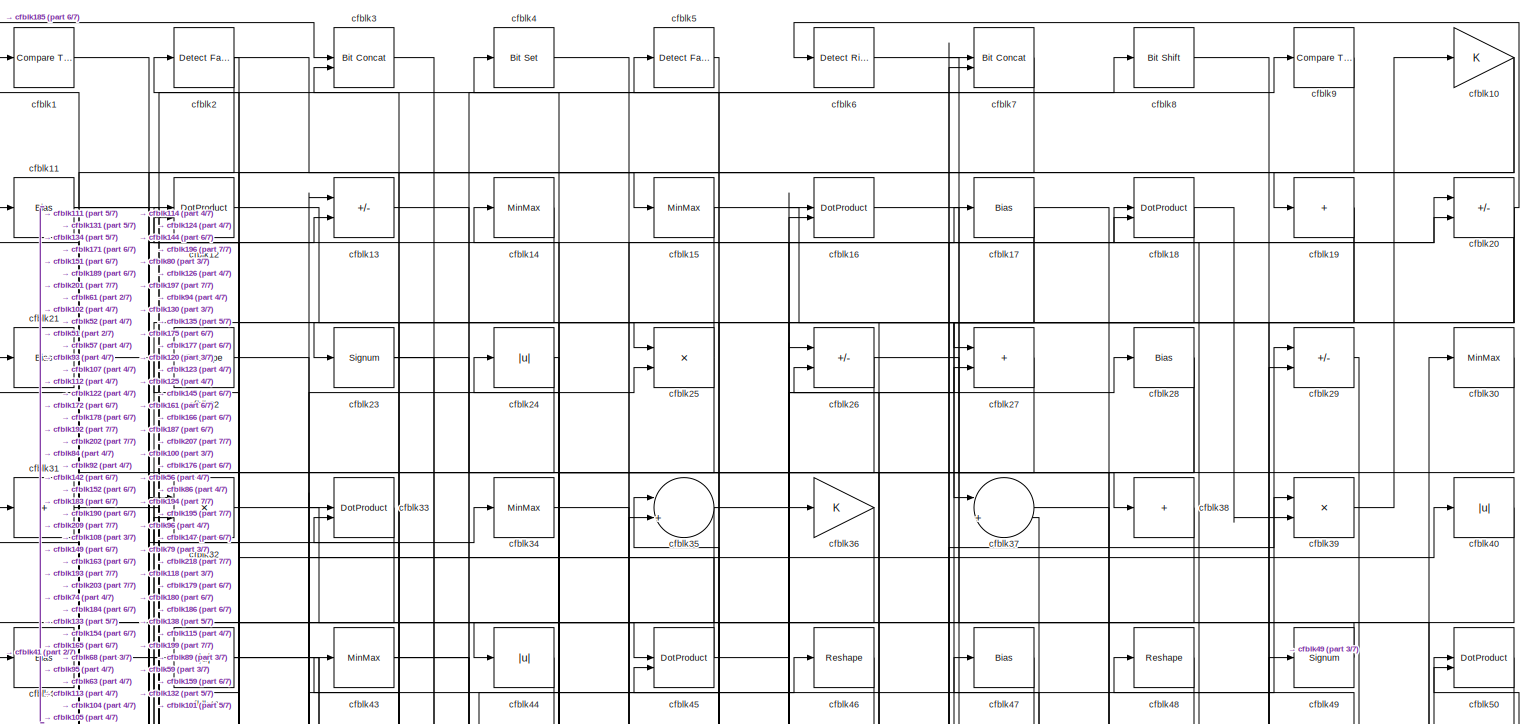
[diagram: root canvas - part 1/7, full width, top band]
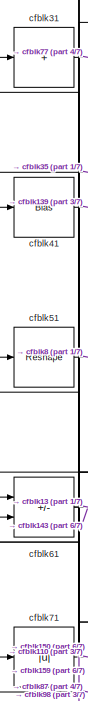
[diagram: root canvas - part 2/7, top left region]
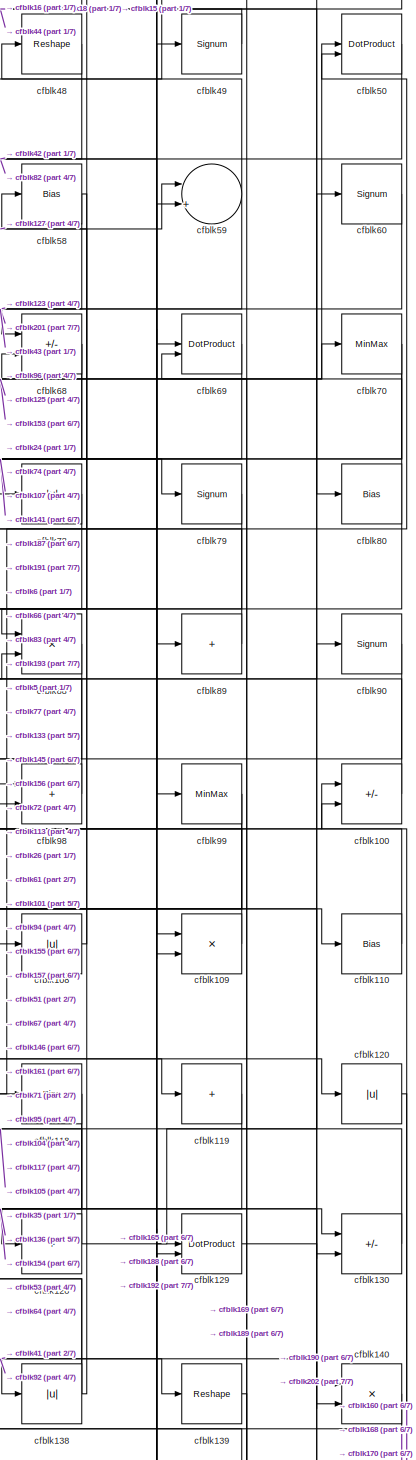
[diagram: root canvas - part 3/7, middle right region]
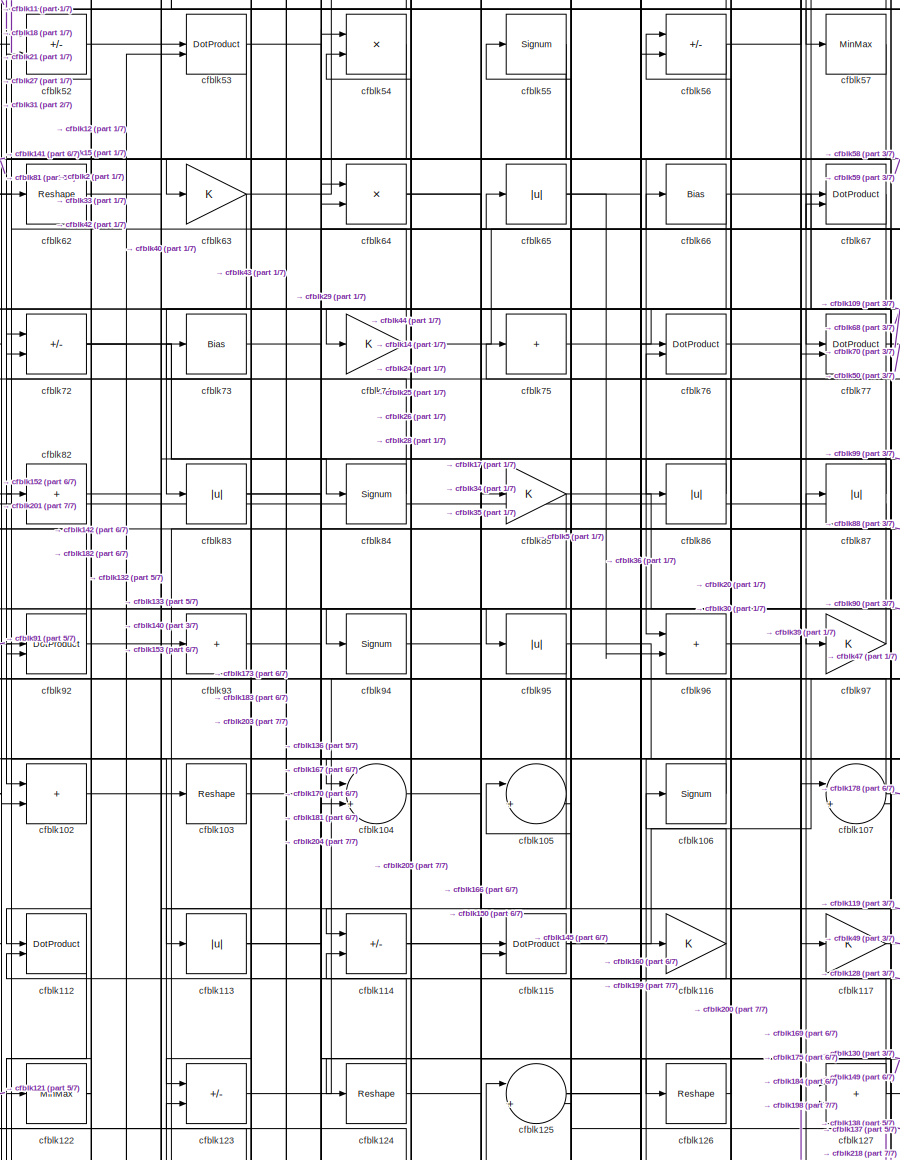
[diagram: root canvas - part 4/7, central region]
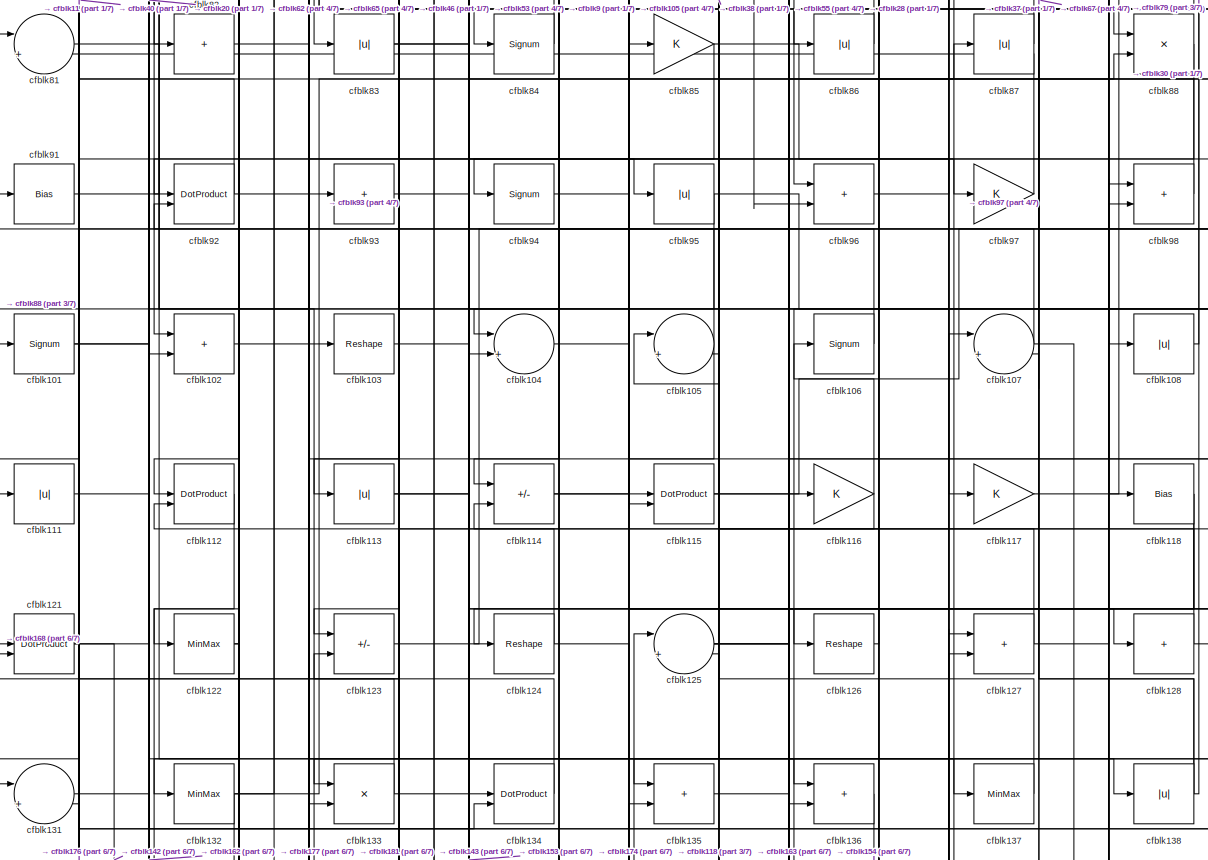
[diagram: root canvas - part 5/7, full width, middle band]
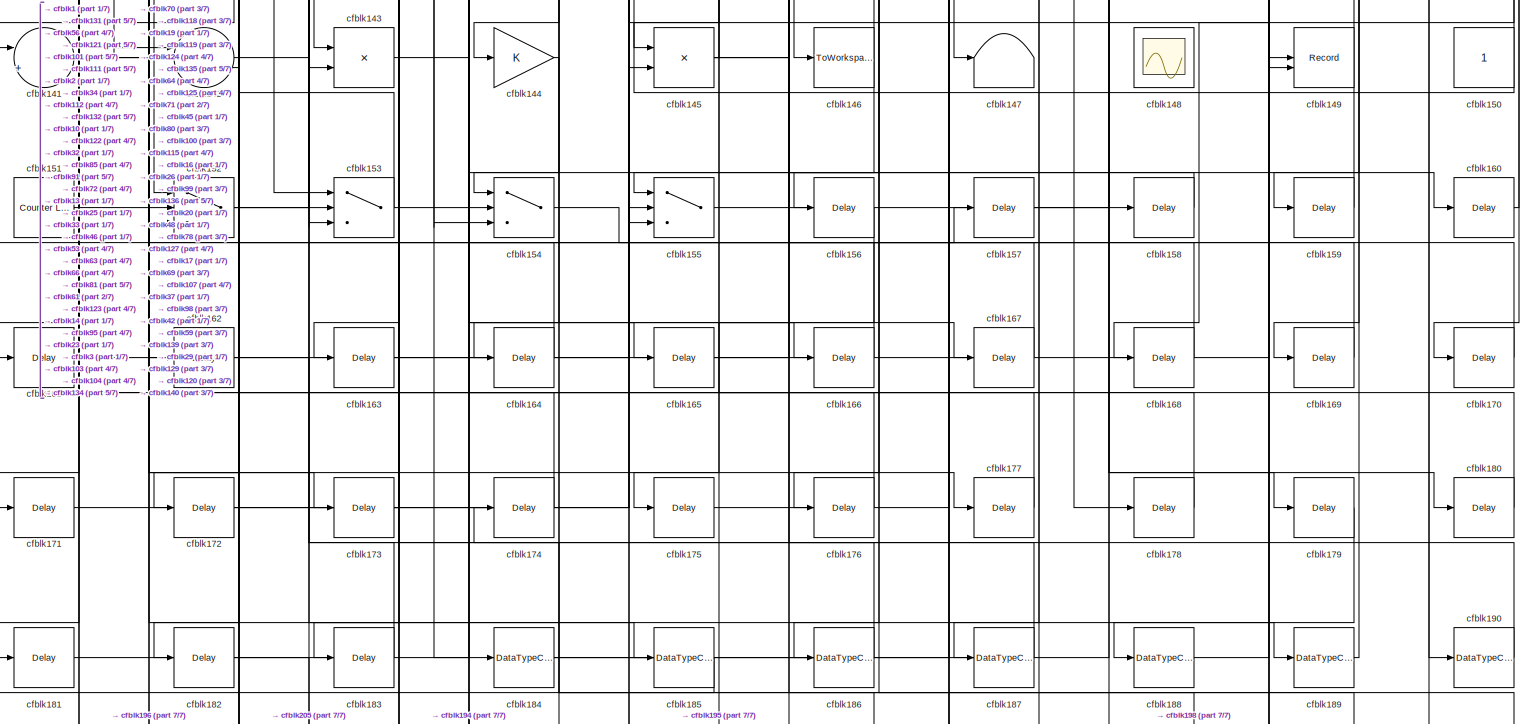
[diagram: root canvas - part 6/7, full width, bottom band]
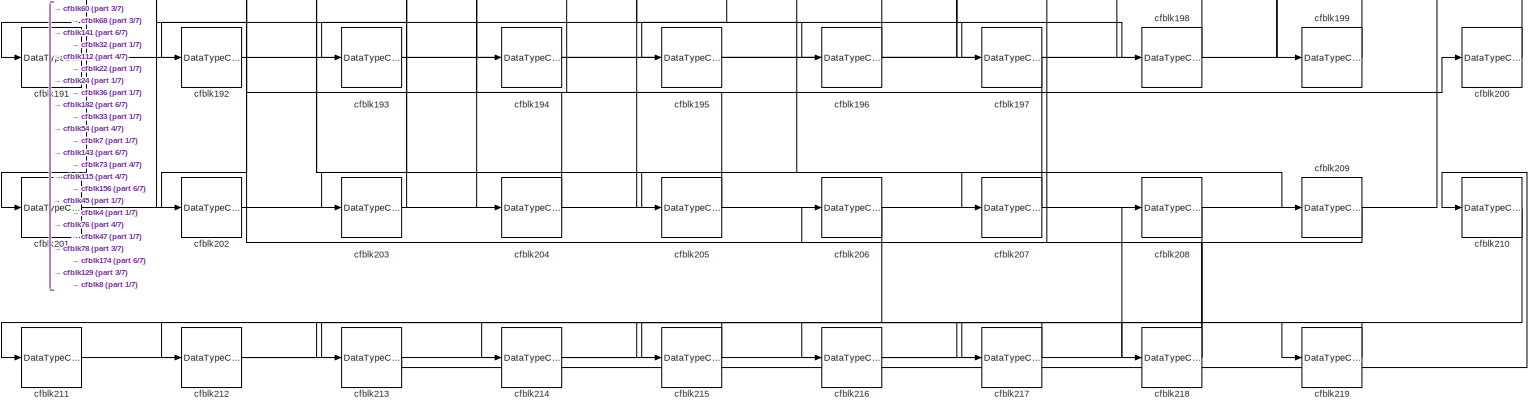
[diagram: root canvas - part 7/7, full width, bottom band]
MODEL slx_0b3b42b38021
KIND model
CONFIG AbsTol = auto
CONFIG EnableMultiTasking = off
CONFIG FixedStep = auto
CONFIG MaxStep = auto
CONFIG MinStep = auto
CONFIG RelTol = 1e-3
CONFIG SampleTimeConstraint = Unconstrained
CONFIG SolverName = VariableStepAuto
CONFIG StartTime = 0.0
CONFIG StopTime = 10.0
BLOCK [Reference] cfblk1  REF=hdlsllib/Logic and Bit
Operations/Compare
To Constant
  SourceBlock = hdlsllib/Logic and Bit\nOperations/Compare\nTo Constant
  SourceType = Compare To Constant
BLOCK [Gain] cfblk10
BLOCK [Sum] cfblk100
  IconShape = rectangular
  Inputs = +-
BLOCK [Signum] cfblk101
BLOCK [Sum] cfblk102
  IconShape = rectangular
BLOCK [Reshape] cfblk103
BLOCK [Sum] cfblk104
  Inputs = |++
BLOCK [Sum] cfblk105
  Inputs = |++
BLOCK [Signum] cfblk106
BLOCK [Sum] cfblk107
  Inputs = |++
BLOCK [Abs] cfblk108
  SaturateOnIntegerOverflow = off
BLOCK [Product] cfblk109
  Inputs = */
  RndMeth = Zero
  SaturateOnIntegerOverflow = on
BLOCK [Bias] cfblk11
  Bias = 0.0
  SaturateOnIntegerOverflow = off
BLOCK [Bias] cfblk110
  Bias = 0.0
  SaturateOnIntegerOverflow = off
BLOCK [Abs] cfblk111
  SaturateOnIntegerOverflow = off
BLOCK [DotProduct] cfblk112
  OutDataTypeStr = Inherit: Inherit via internal rule
BLOCK [Abs] cfblk113
  SaturateOnIntegerOverflow = off
BLOCK [Sum] cfblk114
  IconShape = rectangular
  Inputs = +-
BLOCK [DotProduct] cfblk115
  OutDataTypeStr = Inherit: Inherit via internal rule
BLOCK [Gain] cfblk116
BLOCK [Gain] cfblk117
BLOCK [Bias] cfblk118
  Bias = 0.0
  SaturateOnIntegerOverflow = off
BLOCK [Sum] cfblk119
  IconShape = rectangular
  Inputs = +
BLOCK [DotProduct] cfblk12
  OutDataTypeStr = Inherit: Inherit via internal rule
BLOCK [Abs] cfblk120
  SaturateOnIntegerOverflow = off
BLOCK [DotProduct] cfblk121
  OutDataTypeStr = Inherit: Inherit via internal rule
BLOCK [MinMax] cfblk122
BLOCK [Sum] cfblk123
  IconShape = rectangular
  Inputs = +-
BLOCK [Reshape] cfblk124
BLOCK [Sum] cfblk125
  Inputs = |++
BLOCK [Reshape] cfblk126
BLOCK [Sum] cfblk127
  IconShape = rectangular
BLOCK [Sum] cfblk128
  IconShape = rectangular
  Inputs = +
BLOCK [DotProduct] cfblk129
  OutDataTypeStr = Inherit: Inherit via internal rule
BLOCK [Sum] cfblk13
  IconShape = rectangular
  Inputs = +-
BLOCK [Sum] cfblk130
  IconShape = rectangular
  Inputs = +-
BLOCK [Sum] cfblk131
  Inputs = |++
BLOCK [MinMax] cfblk132
BLOCK [Product] cfblk133
  Inputs = */
  RndMeth = Zero
  SaturateOnIntegerOverflow = on
BLOCK [DotProduct] cfblk134
  OutDataTypeStr = Inherit: Inherit via internal rule
BLOCK [Sum] cfblk135
  IconShape = rectangular
BLOCK [Sum] cfblk136
  IconShape = rectangular
BLOCK [MinMax] cfblk137
BLOCK [Abs] cfblk138
  SaturateOnIntegerOverflow = off
BLOCK [Reshape] cfblk139
BLOCK [MinMax] cfblk14
BLOCK [Product] cfblk140
  Inputs = */
  RndMeth = Zero
  SaturateOnIntegerOverflow = on
BLOCK [Sum] cfblk141
  Inputs = |++
BLOCK [Sum] cfblk142
  Inputs = |++
BLOCK [Product] cfblk143
  Inputs = */
  RndMeth = Zero
  SaturateOnIntegerOverflow = on
BLOCK [Gain] cfblk144
BLOCK [Product] cfblk145
  Inputs = */
  RndMeth = Zero
  SaturateOnIntegerOverflow = on
BLOCK [ToWorkspace] cfblk146
  MaxDataPoints = inf
  SampleTime = -1
  SaveFormat = Timeseries
  VariableName = simout
BLOCK [Terminator] cfblk147
BLOCK [Scope] cfblk148
  Floating = on
  NumInputPorts = 1
  ScopeSpecificationString = Simulink.scopes.TimeScopeBlockCfg('CurrentConfiguration', extmgr.ConfigurationSet(extmgr.Configuration('Core','General UI',true,'FigureColor',[0.156862745098039 0.156862745098039 0.156862745098039]),extmgr.Configuration('Core','Source UI',true),extmgr.Configuration('Sources','WiredSimulink',true,'DataLoggingVariableName','ScopeData1','DataLoggingSaveFormat','StructureWithTime','DataLoggingLimitDat...<+2713ch>
BLOCK [Record] cfblk149
  CompatibilityTag = XY
  FileSettingsInternal = {"entries":[{"content":{"excelSettings":{"content":{},"type":"Streamout.ExcelSettings"}},"type":"Streamout.FileSettingStorage","uuid":""}],"packageUris":["http:\/\/schema.mathworks.com\/mf0\/streamout_blocks\/R2020a"],"version":"1.0"}
  Layout = [1 1]
  SignalsInternal = {"entries":[{"content":{"signals":[{"content":{"blockPath":[],"dimensions":[1],"domain":"","lineColor":"#a2142f","plots":[1],"port":1,"signalID":4842,"signalName":"XY Graph:1"},"type":"RecordBlkView.Signal","uuid":""},{"content":{"blockPath":[],"dimensions":[1],"domain":"","lineColor":"#139fff","plots":[1],"port":2,"signalID":4845,"signalName":"XY Graph:2"},"type":"RecordBlkView.Signal","uuid":""}...<+146ch>
  VisualizationBindings = {"xyplotplugin":{"info":[{"series":[{"bindingParametersList":[{"parameter":"X-Axis","signalID":4842,"signalName":"XY Graph:1"},{"parameter":"Y-Axis","signalID":4845,"signalName":"XY Graph:2"}],"seriesID":37107}],"subplotID":1}]}}
  st = -1
BLOCK [MinMax] cfblk15
BLOCK [Constant] cfblk150
  SampleTime = -1
BLOCK [Reference] cfblk151  REF=hdlsllib/Sources/Counter
Limited
  SourceBlock = hdlsllib/Sources/Counter\nLimited
  SourceType = Counter Limited
BLOCK [Switch] cfblk152
  InputSameDT = off
  SaturateOnIntegerOverflow = off
BLOCK [Switch] cfblk153
  InputSameDT = off
  SaturateOnIntegerOverflow = off
BLOCK [Switch] cfblk154
  InputSameDT = off
  SaturateOnIntegerOverflow = off
BLOCK [Switch] cfblk155
  InputSameDT = off
  SaturateOnIntegerOverflow = off
BLOCK [Delay] cfblk156
  InputPortMap = u0
  SampleTime = 1
BLOCK [Delay] cfblk157
  InputPortMap = u0
  SampleTime = 1
BLOCK [Delay] cfblk158
  InputPortMap = u0
  SampleTime = 1
BLOCK [Delay] cfblk159
  InputPortMap = u0
  SampleTime = 1
BLOCK [DotProduct] cfblk16
  OutDataTypeStr = Inherit: Inherit via internal rule
BLOCK [Delay] cfblk160
  InputPortMap = u0
  SampleTime = 1
BLOCK [Delay] cfblk161
  InputPortMap = u0
  SampleTime = 1
BLOCK [Delay] cfblk162
  InputPortMap = u0
  SampleTime = 1
BLOCK [Delay] cfblk163
  InputPortMap = u0
  SampleTime = 1
BLOCK [Delay] cfblk164
  InputPortMap = u0
  SampleTime = 1
BLOCK [Delay] cfblk165
  InputPortMap = u0
  SampleTime = 1
BLOCK [Delay] cfblk166
  InputPortMap = u0
  SampleTime = 1
BLOCK [Delay] cfblk167
  InputPortMap = u0
  SampleTime = 1
BLOCK [Delay] cfblk168
  InputPortMap = u0
  SampleTime = 1
BLOCK [Delay] cfblk169
  InputPortMap = u0
  SampleTime = 1
BLOCK [Bias] cfblk17
  Bias = 0.0
  SaturateOnIntegerOverflow = off
BLOCK [Delay] cfblk170
  InputPortMap = u0
  SampleTime = 1
BLOCK [Delay] cfblk171
  InputPortMap = u0
  SampleTime = 1
BLOCK [Delay] cfblk172
  InputPortMap = u0
  SampleTime = 1
BLOCK [Delay] cfblk173
  InputPortMap = u0
  SampleTime = 1
BLOCK [Delay] cfblk174
  InputPortMap = u0
  SampleTime = 1
BLOCK [Delay] cfblk175
  InputPortMap = u0
  SampleTime = 1
BLOCK [Delay] cfblk176
  InputPortMap = u0
  SampleTime = 1
BLOCK [Delay] cfblk177
  InputPortMap = u0
  SampleTime = 1
BLOCK [Delay] cfblk178
  InputPortMap = u0
  SampleTime = 1
BLOCK [Delay] cfblk179
  InputPortMap = u0
  SampleTime = 1
BLOCK [DotProduct] cfblk18
  OutDataTypeStr = Inherit: Inherit via internal rule
BLOCK [Delay] cfblk180
  InputPortMap = u0
  SampleTime = 1
BLOCK [Delay] cfblk181
  InputPortMap = u0
  SampleTime = 1
BLOCK [Delay] cfblk182
  InputPortMap = u0
  SampleTime = 1
BLOCK [Delay] cfblk183
  InputPortMap = u0
  SampleTime = 1
BLOCK [DataTypeConversion] cfblk184
  RndMeth = Floor
  SaturateOnIntegerOverflow = off
BLOCK [DataTypeConversion] cfblk185
  OutDataTypeStr = uint8
  RndMeth = Floor
  SaturateOnIntegerOverflow = off
BLOCK [DataTypeConversion] cfblk186
  OutDataTypeStr = uint8
  RndMeth = Floor
  SaturateOnIntegerOverflow = off
BLOCK [DataTypeConversion] cfblk187
  OutDataTypeStr = uint8
  RndMeth = Floor
  SaturateOnIntegerOverflow = off
BLOCK [DataTypeConversion] cfblk188
  OutDataTypeStr = uint8
  RndMeth = Floor
  SaturateOnIntegerOverflow = off
BLOCK [DataTypeConversion] cfblk189
  OutDataTypeStr = uint8
  RndMeth = Floor
  SaturateOnIntegerOverflow = off
BLOCK [Sum] cfblk19
  IconShape = rectangular
  Inputs = +
BLOCK [DataTypeConversion] cfblk190
  OutDataTypeStr = uint8
  RndMeth = Floor
  SaturateOnIntegerOverflow = off
BLOCK [DataTypeConversion] cfblk191
  OutDataTypeStr = uint8
  RndMeth = Floor
  SaturateOnIntegerOverflow = off
BLOCK [DataTypeConversion] cfblk192
  OutDataTypeStr = uint8
  RndMeth = Floor
  SaturateOnIntegerOverflow = off
BLOCK [DataTypeConversion] cfblk193
  OutDataTypeStr = uint8
  RndMeth = Floor
  SaturateOnIntegerOverflow = off
BLOCK [DataTypeConversion] cfblk194
  OutDataTypeStr = uint8
  RndMeth = Floor
  SaturateOnIntegerOverflow = off
BLOCK [DataTypeConversion] cfblk195
  OutDataTypeStr = uint8
  RndMeth = Floor
  SaturateOnIntegerOverflow = off
BLOCK [DataTypeConversion] cfblk196
  OutDataTypeStr = boolean
  RndMeth = Floor
  SaturateOnIntegerOverflow = off
BLOCK [DataTypeConversion] cfblk197
  OutDataTypeStr = uint8
  RndMeth = Floor
  SaturateOnIntegerOverflow = off
BLOCK [DataTypeConversion] cfblk198
  OutDataTypeStr = uint8
  RndMeth = Floor
  SaturateOnIntegerOverflow = off
BLOCK [DataTypeConversion] cfblk199
  OutDataTypeStr = uint8
  RndMeth = Floor
  SaturateOnIntegerOverflow = off
BLOCK [Reference] cfblk2  REF=hdlsllib/Logic and Bit
Operations/Detect Fall
Nonpositive
  SourceBlock = hdlsllib/Logic and Bit\nOperations/Detect Fall\nNonpositive
  SourceType = Detect Fall Nonpositive
BLOCK [Sum] cfblk20
  IconShape = rectangular
  Inputs = +-
BLOCK [DataTypeConversion] cfblk200
  OutDataTypeStr = uint8
  RndMeth = Floor
  SaturateOnIntegerOverflow = off
BLOCK [DataTypeConversion] cfblk201
  RndMeth = Floor
  SaturateOnIntegerOverflow = off
BLOCK [DataTypeConversion] cfblk202
  OutDataTypeStr = uint8
  RndMeth = Floor
  SaturateOnIntegerOverflow = off
BLOCK [DataTypeConversion] cfblk203
  OutDataTypeStr = uint8
  RndMeth = Floor
  SaturateOnIntegerOverflow = off
BLOCK [DataTypeConversion] cfblk204
  OutDataTypeStr = uint8
  RndMeth = Floor
  SaturateOnIntegerOverflow = off
BLOCK [DataTypeConversion] cfblk205
  OutDataTypeStr = uint8
  RndMeth = Floor
  SaturateOnIntegerOverflow = off
BLOCK [DataTypeConversion] cfblk206
  RndMeth = Floor
  SaturateOnIntegerOverflow = off
BLOCK [DataTypeConversion] cfblk207
  OutDataTypeStr = uint8
  RndMeth = Floor
  SaturateOnIntegerOverflow = off
BLOCK [DataTypeConversion] cfblk208
  RndMeth = Floor
  SaturateOnIntegerOverflow = off
BLOCK [DataTypeConversion] cfblk209
  OutDataTypeStr = uint8
  RndMeth = Floor
  SaturateOnIntegerOverflow = off
BLOCK [Bias] cfblk21
  Bias = 0.0
  SaturateOnIntegerOverflow = off
BLOCK [DataTypeConversion] cfblk210
  RndMeth = Floor
  SaturateOnIntegerOverflow = off
BLOCK [DataTypeConversion] cfblk211
  OutDataTypeStr = uint8
  RndMeth = Floor
  SaturateOnIntegerOverflow = off
BLOCK [DataTypeConversion] cfblk212
  RndMeth = Floor
  SaturateOnIntegerOverflow = off
BLOCK [DataTypeConversion] cfblk213
  OutDataTypeStr = uint8
  RndMeth = Floor
  SaturateOnIntegerOverflow = off
BLOCK [DataTypeConversion] cfblk214
  RndMeth = Floor
  SaturateOnIntegerOverflow = off
BLOCK [DataTypeConversion] cfblk215
  OutDataTypeStr = uint8
  RndMeth = Floor
  SaturateOnIntegerOverflow = off
BLOCK [DataTypeConversion] cfblk216
  RndMeth = Floor
  SaturateOnIntegerOverflow = off
BLOCK [DataTypeConversion] cfblk217
  OutDataTypeStr = uint8
  RndMeth = Floor
  SaturateOnIntegerOverflow = off
BLOCK [DataTypeConversion] cfblk218
  RndMeth = Floor
  SaturateOnIntegerOverflow = off
BLOCK [DataTypeConversion] cfblk219
  OutDataTypeStr = uint8
  RndMeth = Floor
  SaturateOnIntegerOverflow = off
BLOCK [Reshape] cfblk22
BLOCK [Signum] cfblk23
BLOCK [Abs] cfblk24
  SaturateOnIntegerOverflow = off
BLOCK [Product] cfblk25
  Inputs = */
  RndMeth = Zero
  SaturateOnIntegerOverflow = on
BLOCK [Sum] cfblk26
  IconShape = rectangular
  Inputs = +-
BLOCK [Sum] cfblk27
  IconShape = rectangular
BLOCK [Bias] cfblk28
  Bias = 0.0
  SaturateOnIntegerOverflow = off
BLOCK [Sum] cfblk29
  IconShape = rectangular
  Inputs = +-
BLOCK [Reference] cfblk3  REF=hdlsllib/Logic and Bit
Operations/Bit Concat
  SourceBlock = hdlsllib/Logic and Bit\nOperations/Bit Concat
  SourceType = Bit Concat
BLOCK [MinMax] cfblk30
BLOCK [Sum] cfblk31
  IconShape = rectangular
  Inputs = +
BLOCK [Product] cfblk32
  Inputs = */
  RndMeth = Zero
  SaturateOnIntegerOverflow = on
BLOCK [DotProduct] cfblk33
  OutDataTypeStr = Inherit: Inherit via internal rule
BLOCK [MinMax] cfblk34
BLOCK [Sum] cfblk35
  Inputs = |++
BLOCK [Gain] cfblk36
BLOCK [Sum] cfblk37
  Inputs = |++
BLOCK [Sum] cfblk38
  IconShape = rectangular
  Inputs = +
BLOCK [Product] cfblk39
  Inputs = */
  RndMeth = Zero
  SaturateOnIntegerOverflow = on
BLOCK [Reference] cfblk4  REF=simulink/Logic and Bit
Operations/Bit Set
  LibrarySourceBlock = hdlsllib/Logic and Bit\nOperations/Bit Set
  SourceBlock = simulink/Logic and Bit\nOperations/Bit Set
  SourceType = Bit Set
BLOCK [Abs] cfblk40
  SaturateOnIntegerOverflow = off
BLOCK [Bias] cfblk41
  Bias = 0.0
  SaturateOnIntegerOverflow = off
BLOCK [Abs] cfblk42
  SaturateOnIntegerOverflow = off
BLOCK [MinMax] cfblk43
BLOCK [Abs] cfblk44
  SaturateOnIntegerOverflow = off
BLOCK [DotProduct] cfblk45
  OutDataTypeStr = Inherit: Inherit via internal rule
BLOCK [Reshape] cfblk46
BLOCK [Bias] cfblk47
  Bias = 0.0
  SaturateOnIntegerOverflow = off
BLOCK [Reshape] cfblk48
BLOCK [Signum] cfblk49
BLOCK [Reference] cfblk5  REF=hdlsllib/Logic and Bit
Operations/Detect Fall
Nonpositive
  SourceBlock = hdlsllib/Logic and Bit\nOperations/Detect Fall\nNonpositive
  SourceType = Detect Fall Nonpositive
BLOCK [DotProduct] cfblk50
  OutDataTypeStr = Inherit: Inherit via internal rule
BLOCK [Reshape] cfblk51
BLOCK [Sum] cfblk52
  IconShape = rectangular
  Inputs = +-
BLOCK [DotProduct] cfblk53
  OutDataTypeStr = Inherit: Inherit via internal rule
BLOCK [Product] cfblk54
  Inputs = */
  RndMeth = Zero
  SaturateOnIntegerOverflow = on
BLOCK [Signum] cfblk55
BLOCK [Sum] cfblk56
  IconShape = rectangular
  Inputs = +-
BLOCK [MinMax] cfblk57
BLOCK [Bias] cfblk58
  Bias = 0.0
  SaturateOnIntegerOverflow = off
BLOCK [Sum] cfblk59
  Inputs = |++
BLOCK [Reference] cfblk6  REF=hdlsllib/Logic and Bit
Operations/Detect Rise
Nonnegative
  SourceBlock = hdlsllib/Logic and Bit\nOperations/Detect Rise\nNonnegative
  SourceType = Detect Rise Nonnegative
BLOCK [Signum] cfblk60
BLOCK [Sum] cfblk61
  IconShape = rectangular
  Inputs = +-
BLOCK [Reshape] cfblk62
BLOCK [Gain] cfblk63
BLOCK [Product] cfblk64
  Inputs = */
  RndMeth = Zero
  SaturateOnIntegerOverflow = on
BLOCK [Abs] cfblk65
  SaturateOnIntegerOverflow = off
BLOCK [Bias] cfblk66
  Bias = 0.0
  SaturateOnIntegerOverflow = off
BLOCK [DotProduct] cfblk67
  OutDataTypeStr = Inherit: Inherit via internal rule
BLOCK [Sum] cfblk68
  IconShape = rectangular
  Inputs = +-
BLOCK [DotProduct] cfblk69
  OutDataTypeStr = Inherit: Inherit via internal rule
BLOCK [Reference] cfblk7  REF=hdlsllib/Logic and Bit
Operations/Bit Concat
  SourceBlock = hdlsllib/Logic and Bit\nOperations/Bit Concat
  SourceType = Bit Concat
BLOCK [MinMax] cfblk70
BLOCK [Abs] cfblk71
  SaturateOnIntegerOverflow = off
BLOCK [Sum] cfblk72
  IconShape = rectangular
  Inputs = +-
BLOCK [Bias] cfblk73
  Bias = 0.0
  SaturateOnIntegerOverflow = off
BLOCK [Gain] cfblk74
BLOCK [Sum] cfblk75
  IconShape = rectangular
  Inputs = +
BLOCK [DotProduct] cfblk76
  OutDataTypeStr = Inherit: Inherit via internal rule
BLOCK [DotProduct] cfblk77
  OutDataTypeStr = Inherit: Inherit via internal rule
BLOCK [Abs] cfblk78
  SaturateOnIntegerOverflow = off
BLOCK [Signum] cfblk79
BLOCK [Reference] cfblk8  REF=hdlsllib/Logic and Bit
Operations/Bit Shift
  SourceBlock = hdlsllib/Logic and Bit\nOperations/Bit Shift
  SourceType = Bit Shift
BLOCK [Bias] cfblk80
  Bias = 0.0
  SaturateOnIntegerOverflow = off
BLOCK [Sum] cfblk81
  Inputs = |++
BLOCK [Sum] cfblk82
  IconShape = rectangular
  Inputs = +
BLOCK [Abs] cfblk83
  SaturateOnIntegerOverflow = off
BLOCK [Signum] cfblk84
BLOCK [Gain] cfblk85
BLOCK [Abs] cfblk86
  SaturateOnIntegerOverflow = off
BLOCK [Abs] cfblk87
  SaturateOnIntegerOverflow = off
BLOCK [Product] cfblk88
  Inputs = */
  RndMeth = Zero
  SaturateOnIntegerOverflow = on
BLOCK [Sum] cfblk89
  IconShape = rectangular
  Inputs = +
BLOCK [Reference] cfblk9  REF=hdlsllib/Logic and Bit
Operations/Compare
To Constant
  SourceBlock = hdlsllib/Logic and Bit\nOperations/Compare\nTo Constant
  SourceType = Compare To Constant
BLOCK [Signum] cfblk90
BLOCK [Bias] cfblk91
  Bias = 0.0
  SaturateOnIntegerOverflow = off
BLOCK [DotProduct] cfblk92
  OutDataTypeStr = Inherit: Inherit via internal rule
BLOCK [Sum] cfblk93
  IconShape = rectangular
  Inputs = +
BLOCK [Signum] cfblk94
BLOCK [Abs] cfblk95
  SaturateOnIntegerOverflow = off
BLOCK [Sum] cfblk96
  IconShape = rectangular
BLOCK [Gain] cfblk97
BLOCK [Sum] cfblk98
  IconShape = rectangular
BLOCK [MinMax] cfblk99
LINE cfblk100:1 -> cfblk26:2
NET cfblk101:1 -> cfblk177:1, cfblk20:1
LINE cfblk102:1 -> cfblk103:1
LINE cfblk103:1 -> cfblk167:1
LINE cfblk104:1 -> cfblk119:1
NET cfblk105:1 -> cfblk133:2, cfblk14:1
LINE cfblk106:1 -> cfblk52:2
NET cfblk107:1 -> cfblk178:1, cfblk42:1
LINE cfblk108:1 -> cfblk58:1
LINE cfblk109:1 -> cfblk67:1
NET cfblk10:1 -> cfblk171:1, cfblk172:1
LINE cfblk110:1 -> cfblk51:1
LINE cfblk111:1 -> cfblk162:1
LINE cfblk112:1 -> cfblk152:1
NET cfblk113:1 -> cfblk66:1, cfblk88:2
NET cfblk114:1 -> cfblk17:1, cfblk85:1
NET cfblk115:1 -> cfblk160:1, cfblk29:2
NET cfblk116:1 -> cfblk106:1, cfblk114:2
LINE cfblk117:1 -> cfblk49:1
NET cfblk118:1 -> cfblk136:2, cfblk154:1
LINE cfblk119:1 -> cfblk155:3
NET cfblk11:1 -> cfblk138:1, cfblk93:1
LINE cfblk120:1 -> cfblk170:1
NET cfblk121:1 -> cfblk142:1, cfblk62:1
NET cfblk122:1 -> cfblk12:2, cfblk182:1
LINE cfblk123:1 -> cfblk36:1
NET cfblk124:1 -> cfblk166:1, cfblk92:2
NET cfblk125:1 -> cfblk27:2, cfblk68:2, cfblk87:1
LINE cfblk126:1 -> cfblk56:1
NET cfblk127:1 -> cfblk59:1, cfblk73:1
NET cfblk128:1 -> cfblk105:1, cfblk90:1
LINE cfblk129:1 -> cfblk190:1
LINE cfblk12:1 -> cfblk25:1
LINE cfblk130:1 -> cfblk35:1
LINE cfblk131:1 -> cfblk134:2
NET cfblk132:1 -> cfblk181:1, cfblk30:1, cfblk53:2
NET cfblk133:1 -> cfblk121:2, cfblk9:1
LINE cfblk134:1 -> cfblk11:1
LINE cfblk135:1 -> cfblk28:1
LINE cfblk136:1 -> cfblk154:2
LINE cfblk137:1 -> cfblk55:1
NET cfblk138:1 -> cfblk37:2, cfblk48:1, cfblk67:2
LINE cfblk139:1 -> cfblk169:1
LINE cfblk13:1 -> cfblk38:1
LINE cfblk140:1 -> cfblk168:1
NET cfblk141:1 -> cfblk173:1, cfblk196:1
LINE cfblk142:1 -> cfblk25:2
LINE cfblk143:1 -> cfblk194:1
LINE cfblk144:1 -> cfblk164:1
NET cfblk145:1 -> cfblk100:1, cfblk125:2, cfblk20:2
LINE cfblk14:1 -> cfblk163:1
NET cfblk150:1 -> cfblk125:1, cfblk71:1
LINE cfblk151:1 -> cfblk34:1
NET cfblk152:1 -> cfblk46:1, cfblk53:1
NET cfblk153:1 -> cfblk70:1, cfblk91:1
LINE cfblk154:1 -> cfblk157:1
LINE cfblk155:1 -> cfblk98:1
LINE cfblk156:1 -> cfblk195:1
LINE cfblk157:1 -> cfblk98:2
LINE cfblk158:1 -> cfblk155:1
LINE cfblk159:1 -> cfblk61:1
NET cfblk15:1 -> cfblk89:1, cfblk92:1
LINE cfblk160:1 -> cfblk100:2
LINE cfblk161:1 -> cfblk16:2
LINE cfblk162:1 -> cfblk185:1
LINE cfblk163:1 -> cfblk135:2
LINE cfblk164:1 -> cfblk152:2
LINE cfblk165:1 -> cfblk59:2
LINE cfblk166:1 -> cfblk26:1
LINE cfblk167:1 -> cfblk72:2
LINE cfblk168:1 -> cfblk121:1
LINE cfblk169:1 -> cfblk127:1
LINE cfblk16:1 -> cfblk80:1
LINE cfblk170:1 -> cfblk64:1
LINE cfblk171:1 -> cfblk155:2
LINE cfblk172:1 -> cfblk145:2
LINE cfblk173:1 -> cfblk123:2
LINE cfblk174:1 -> cfblk134:1
LINE cfblk175:1 -> cfblk107:1
LINE cfblk176:1 -> cfblk131:2
LINE cfblk177:1 -> cfblk45:2
LINE cfblk178:1 -> cfblk32:2
LINE cfblk179:1 -> cfblk188:1
NET cfblk17:1 -> cfblk147:1, cfblk180:1, cfblk37:1
LINE cfblk180:1 -> cfblk1:1
LINE cfblk181:1 -> cfblk104:2
LINE cfblk182:1 -> cfblk205:1
LINE cfblk183:1 -> cfblk13:1
NET cfblk184:1 -> cfblk127:2, cfblk158:1
LINE cfblk185:1 -> cfblk3:1
LINE cfblk186:1 -> cfblk3:2
LINE cfblk187:1 -> cfblk16:1
LINE cfblk188:1 -> cfblk69:1
LINE cfblk189:1 -> cfblk69:2
NET cfblk18:1 -> cfblk102:1, cfblk39:2
LINE cfblk190:1 -> cfblk33:1
LINE cfblk191:1 -> cfblk129:1
LINE cfblk192:1 -> cfblk129:2
LINE cfblk193:1 -> cfblk78:1
LINE cfblk194:1 -> cfblk7:1
LINE cfblk195:1 -> cfblk7:2
LINE cfblk196:1 -> cfblk4:1
LINE cfblk197:1 -> cfblk200:1
LINE cfblk198:1 -> cfblk174:1
LINE cfblk199:1 -> cfblk76:1
NET cfblk19:1 -> cfblk144:1, cfblk27:1
LINE cfblk1:1 -> cfblk189:1
LINE cfblk200:1 -> cfblk76:2
NET cfblk201:1 -> cfblk115:1, cfblk32:1
LINE cfblk202:1 -> cfblk60:1
LINE cfblk203:1 -> cfblk33:2
LINE cfblk204:1 -> cfblk54:1
LINE cfblk205:1 -> cfblk54:2
LINE cfblk206:1 -> cfblk211:1
LINE cfblk207:1 -> cfblk22:1
LINE cfblk208:1 -> cfblk213:1
LINE cfblk209:1 -> cfblk206:1
NET cfblk20:1 -> cfblk175:1, cfblk176:1, cfblk56:2, cfblk6:1
LINE cfblk210:1 -> cfblk215:1
LINE cfblk211:1 -> cfblk208:1
LINE cfblk212:1 -> cfblk217:1
LINE cfblk213:1 -> cfblk210:1
LINE cfblk214:1 -> cfblk219:1
LINE cfblk215:1 -> cfblk212:1
LINE cfblk216:1 -> cfblk218:1
LINE cfblk217:1 -> cfblk214:1
NET cfblk218:1 -> cfblk112:2, cfblk47:1
LINE cfblk219:1 -> cfblk216:1
LINE cfblk21:1 -> cfblk57:1
LINE cfblk22:1 -> cfblk209:1
NET cfblk23:1 -> cfblk154:3, cfblk165:1
NET cfblk24:1 -> cfblk114:1, cfblk192:1
NET cfblk25:1 -> cfblk124:1, cfblk23:1
NET cfblk26:1 -> cfblk104:1, cfblk118:1
LINE cfblk27:1 -> cfblk52:1
NET cfblk28:1 -> cfblk131:1, cfblk74:1
LINE cfblk29:1 -> cfblk159:1
NET cfblk2:1 -> cfblk112:1, cfblk152:3, cfblk15:1
LINE cfblk30:1 -> cfblk86:1
LINE cfblk31:1 -> cfblk77:2
LINE cfblk32:1 -> cfblk45:1
LINE cfblk33:1 -> cfblk122:1
LINE cfblk34:1 -> cfblk126:1
NET cfblk35:1 -> cfblk120:1, cfblk41:1
LINE cfblk36:1 -> cfblk202:1
LINE cfblk37:1 -> cfblk179:1
LINE cfblk38:1 -> cfblk135:1
LINE cfblk39:1 -> cfblk10:1
LINE cfblk3:1 -> cfblk184:1
LINE cfblk40:1 -> cfblk111:1
LINE cfblk41:1 -> cfblk139:1
NET cfblk42:1 -> cfblk108:1, cfblk149:1
NET cfblk43:1 -> cfblk68:1, cfblk95:1
LINE cfblk44:1 -> cfblk113:1
NET cfblk45:1 -> cfblk207:1, cfblk2:1
LINE cfblk46:1 -> cfblk132:1
LINE cfblk47:1 -> cfblk63:1
LINE cfblk48:1 -> cfblk186:1
LINE cfblk49:1 -> cfblk44:1
LINE cfblk4:1 -> cfblk197:1
LINE cfblk50:1 -> cfblk82:1
LINE cfblk51:1 -> cfblk8:1
LINE cfblk52:1 -> cfblk40:1
NET cfblk53:1 -> cfblk130:1, cfblk72:1
LINE cfblk54:1 -> cfblk203:1
NET cfblk55:1 -> cfblk64:2, cfblk81:1
NET cfblk56:1 -> cfblk141:2, cfblk18:2
LINE cfblk57:1 -> cfblk102:2
NET cfblk58:1 -> cfblk88:1, cfblk96:1
NET cfblk59:1 -> cfblk123:1, cfblk18:1
LINE cfblk5:1 -> cfblk105:2
LINE cfblk60:1 -> cfblk201:1
NET cfblk61:1 -> cfblk13:2, cfblk143:1
LINE cfblk62:1 -> cfblk84:1
NET cfblk63:1 -> cfblk153:3, cfblk29:1
NET cfblk64:1 -> cfblk128:1, cfblk149:2
NET cfblk65:1 -> cfblk137:1, cfblk96:2
NET cfblk66:1 -> cfblk109:1, cfblk153:2
LINE cfblk67:1 -> cfblk115:2
NET cfblk68:1 -> cfblk191:1, cfblk83:1
LINE cfblk69:1 -> cfblk187:1
LINE cfblk6:1 -> cfblk79:1
NET cfblk70:1 -> cfblk107:2, cfblk141:1
LINE cfblk71:1 -> cfblk110:1
NET cfblk72:1 -> cfblk116:1, cfblk153:1, cfblk99:1
LINE cfblk73:1 -> cfblk204:1
NET cfblk74:1 -> cfblk43:1, cfblk50:2
LINE cfblk75:1 -> cfblk77:1
LINE cfblk76:1 -> cfblk198:1
LINE cfblk77:1 -> cfblk50:1
LINE cfblk78:1 -> cfblk156:1
LINE cfblk79:1 -> cfblk133:1
LINE cfblk7:1 -> cfblk193:1
NET cfblk80:1 -> cfblk145:1, cfblk24:1
LINE cfblk81:1 -> cfblk143:2
LINE cfblk82:1 -> cfblk97:1
NET cfblk83:1 -> cfblk109:2, cfblk130:2
LINE cfblk84:1 -> cfblk12:1
NET cfblk85:1 -> cfblk117:1, cfblk142:2
LINE cfblk86:1 -> cfblk75:1
LINE cfblk87:1 -> cfblk31:1
LINE cfblk88:1 -> cfblk101:1
LINE cfblk89:1 -> cfblk5:1
LINE cfblk8:1 -> cfblk199:1
LINE cfblk90:1 -> cfblk94:1
LINE cfblk91:1 -> cfblk65:1
NET cfblk92:1 -> cfblk140:2, cfblk21:1
LINE cfblk93:1 -> cfblk136:1
LINE cfblk94:1 -> cfblk35:2
NET cfblk95:1 -> cfblk140:1, cfblk183:1
LINE cfblk96:1 -> cfblk39:1
LINE cfblk97:1 -> cfblk81:2
LINE cfblk98:1 -> cfblk61:2
NET cfblk99:1 -> cfblk146:1, cfblk161:1
LINE cfblk9:1 -> cfblk19:1
note: NET lines group one-source signal fan-out (src -> all destinations, sorted); 1:1 wires keep LINE
